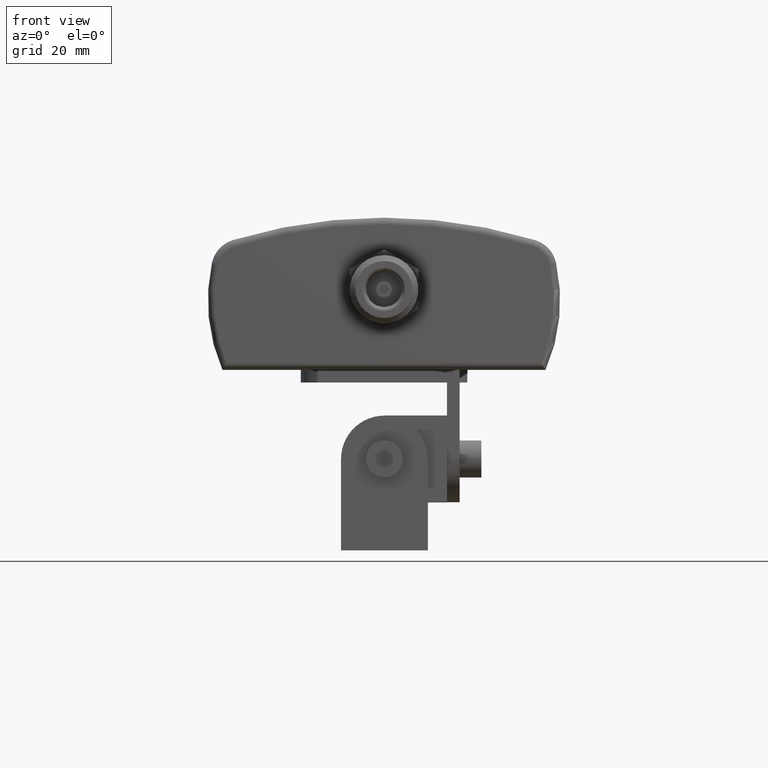
[diagram: clean part render]
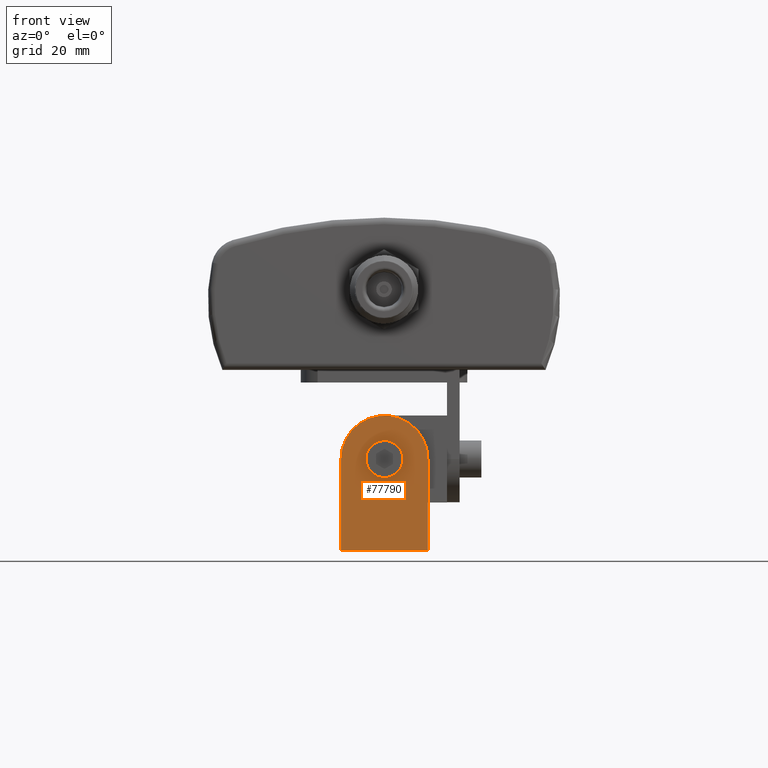
[diagram: same view with one face highlighted and labeled with its STEP entity id]
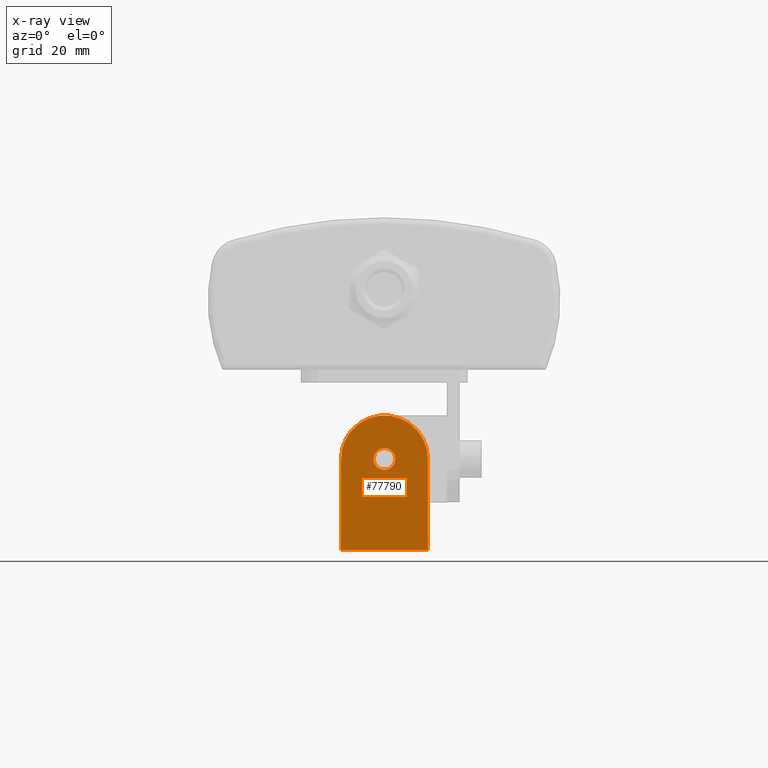
[diagram: x-ray of the same camera — body ghosted, the highlighted face saturated]
A machine part, front view. The second image highlights one B-rep face of the part: STEP entity #77790.
The next image is the same camera in x-ray: the body ghosted, the highlighted face saturated — about 0% of this face is hidden behind the body in this view.
In plain terms, the highlighted planar face has unit normal (-0, -1, 0).
Its self-contained STEP definition (entity closure, byte-faithful):
#71660=CARTESIAN_POINT('',(10.0000000000918,20.9999999999364,
7.99999999989478));
#71670=VERTEX_POINT('',#71660);
#71700=CARTESIAN_POINT('',(0.,20.9999999999364,7.99999999989478));
#71710=DIRECTION('',(-1.,0.,0.));
#71720=VECTOR('',#71710,1.);
#71730=LINE('',#71700,#71720);
#71740=CARTESIAN_POINT('',(-10.0000000002357,20.9999999999364,
7.99999999989478));
#71750=VERTEX_POINT('',#71740);
#71760=EDGE_CURVE('',#71670,#71750,#71730,.T.);
#76190=CARTESIAN_POINT('',(-10.0000000002357,0.,7.99999999989478));
#76200=DIRECTION('',(0.,-1.,0.));
#76210=VECTOR('',#76200,1.);
#76220=LINE('',#76190,#76210);
#76230=CARTESIAN_POINT('',(-9.99999999987972,-2.63475975787434E-11,
7.99999999989478));
#76240=VERTEX_POINT('',#76230);
#76250=EDGE_CURVE('',#71750,#76240,#76220,.T.);
#76990=CARTESIAN_POINT('',(10.0000000001203,2.63655212177942E-10,
7.99999999989478));
#77000=VERTEX_POINT('',#76990);
#77030=CARTESIAN_POINT('',(10.0000000000918,0.,7.99999999989478));
#77040=DIRECTION('',(0.,1.,0.));
#77050=VECTOR('',#77040,1.);
#77060=LINE('',#77030,#77050);
#77070=EDGE_CURVE('',#77000,#71670,#77060,.T.);
#77330=CARTESIAN_POINT('',(1.2028067430947E-10,1.59872115546023E-14,
7.99999999989478));
#77340=DIRECTION('',(0.,0.,-1.));
#77350=DIRECTION('',(-1.,0.,0.));
#77360=AXIS2_PLACEMENT_3D('',#77330,#77340,#77350);
#77370=CIRCLE('',#77360,10.);
#77380=EDGE_CURVE('',#77000,#76240,#77370,.T.);
#77530=CARTESIAN_POINT('',(-10.5006615002446,-10.6281615000075,
7.99999999989478));
#77540=DIRECTION('',(0.,0.,1.));
#77550=DIRECTION('',(1.,0.,0.));
#77560=AXIS2_PLACEMENT_3D('',#77530,#77540,#77550);
#77570=PLANE('',#77560);
#77580=ORIENTED_EDGE('',*,*,#71760,.T.);
#77590=ORIENTED_EDGE('',*,*,#77070,.T.);
#77600=ORIENTED_EDGE('',*,*,#77380,.F.);
#77610=ORIENTED_EDGE('',*,*,#76250,.T.);
#77620=EDGE_LOOP('',(#77610,#77600,#77590,#77580));
#77630=FACE_OUTER_BOUND('',#77620,.T.);
#77640=CARTESIAN_POINT('',(1.46219139735335E-27,0.,7.99999999989478));
#77650=DIRECTION('',(-2.78485912461099E-28,0.,1.));
#77660=DIRECTION('',(1.,3.23117426778526E-27,2.78485912461099E-28));
#77670=AXIS2_PLACEMENT_3D('',#77640,#77650,#77660);
#77680=CIRCLE('',#77670,2.5);
#77690=CARTESIAN_POINT('',(2.5,8.07793566946317E-27,7.99999999989478));
#77700=VERTEX_POINT('',#77690);
#77710=CARTESIAN_POINT('',(-2.5,3.06161699778761E-16,7.99999999989478));
#77720=VERTEX_POINT('',#77710);
#77730=EDGE_CURVE('',#77700,#77720,#77680,.T.);
#77740=ORIENTED_EDGE('',*,*,#77730,.F.);
#77750=EDGE_CURVE('',#77720,#77700,#77680,.T.);
#77760=ORIENTED_EDGE('',*,*,#77750,.F.);
#77770=EDGE_LOOP('',(#77760,#77740));
#77780=FACE_BOUND('',#77770,.T.);
#77790=ADVANCED_FACE('',(#77630,#77780),#77570,.T.);